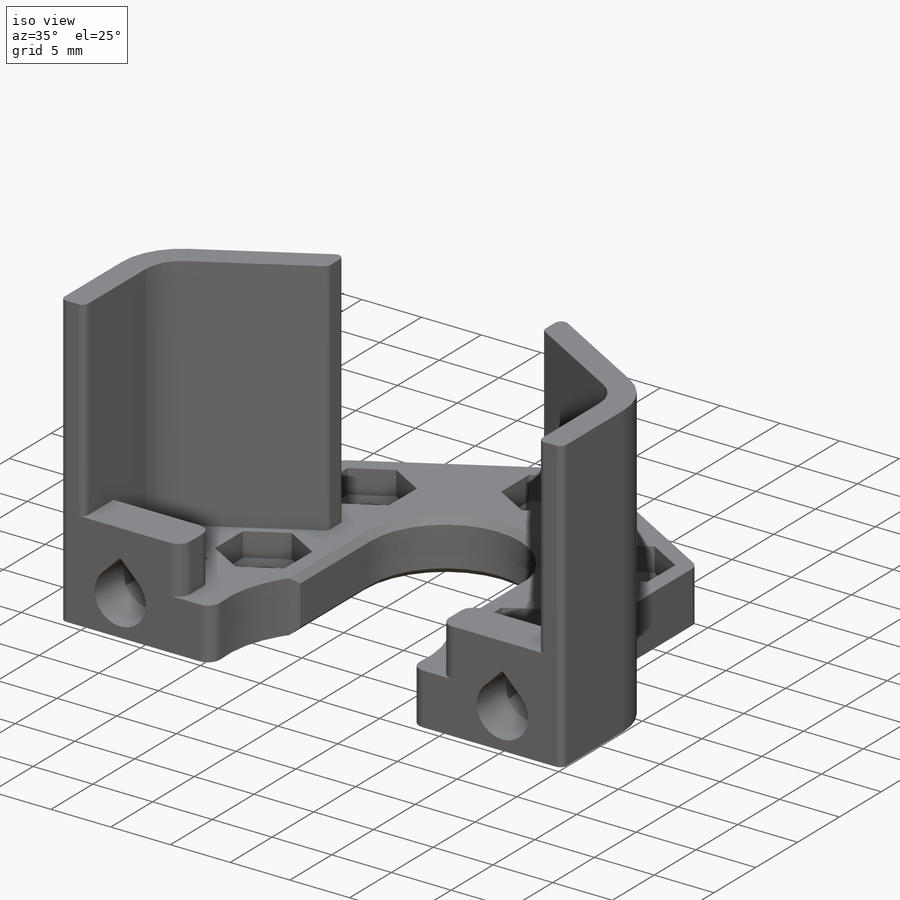
[diagram: iso view]
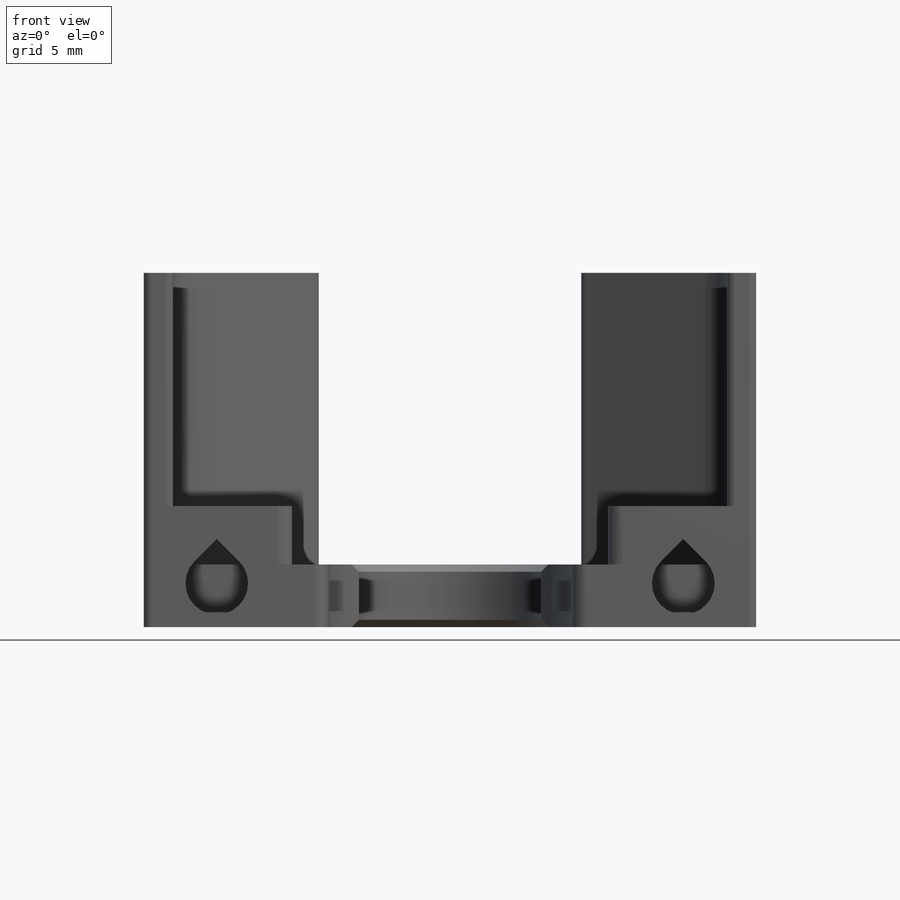
[diagram: front view]
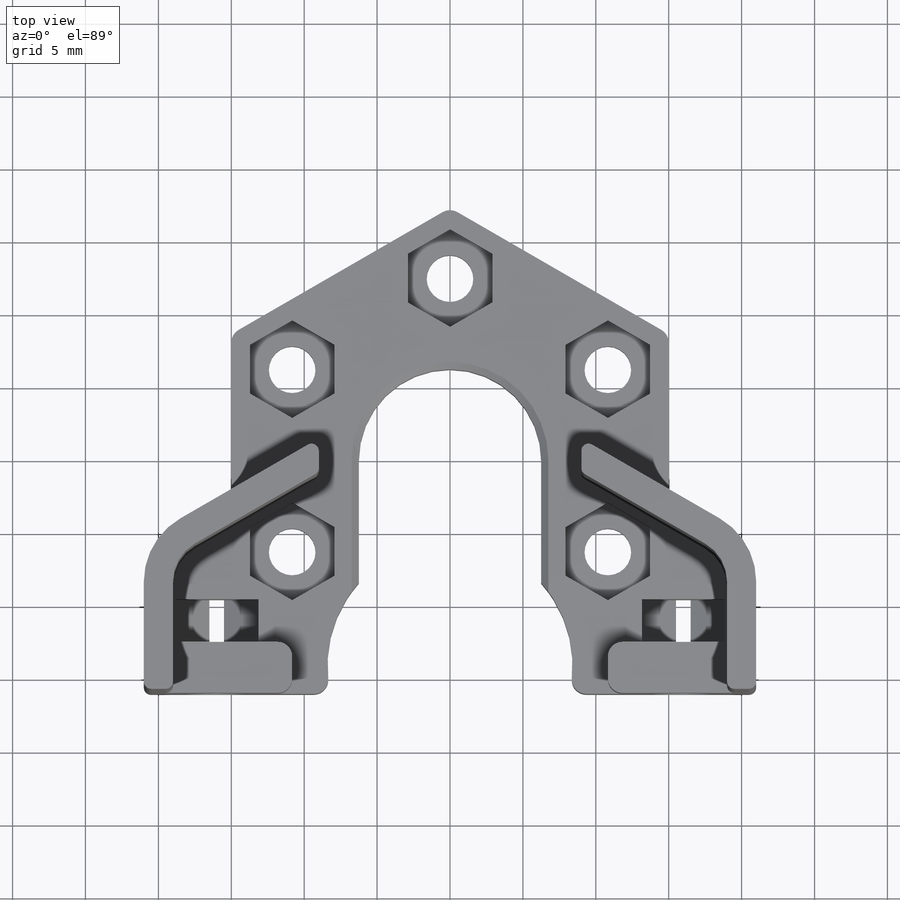
[diagram: top view]
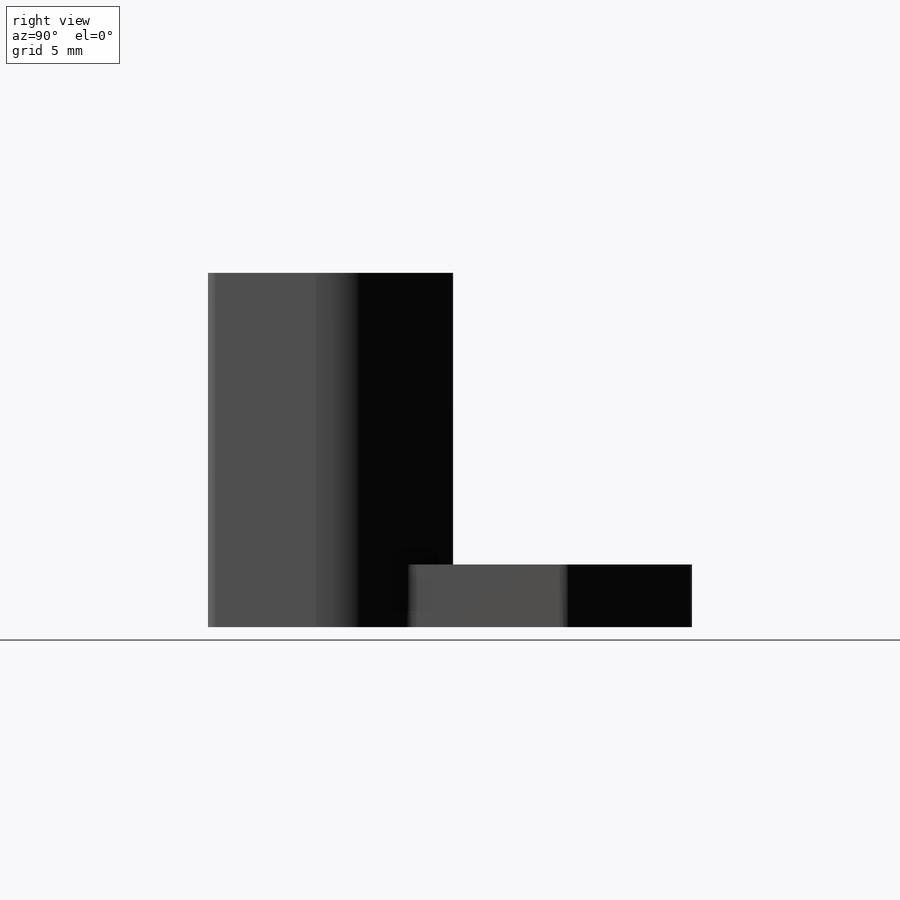
[diagram: right view]
SOLIDWORKS PART (.sldprt)
format: sldprt  version: not decoded by parser v0  size: 593,920 bytes
history: native  units: mm
features: sketch x11, cut_extrude x7, fillet x5, extrude x4, material x1, chamfer x1 (+12 scaffold rows collapsed)
feature tree (41):
  scaffold x12  (default folders/planes/origin — collapsed)
  material  "Material <not specified>"
  sketch  "Sketch1"  dims[c1.D4=3.2mm c1.D1=12.5mm c1.D2=32.0mm c1.D3=~27.712813mm c2.D2=30.0mm c2.D3=25.0mm]
  extrude  "Boss-Extrude1"  Depth=4.3mm
  fillet  "Fillet1"  Radius=1mm
  sketch  "Sketch2"  dims[D1=5.8mm]
  cut_extrude  "Cut-Extrude1"  Depth=2mm
  sketch  "Sketch3"  dims[D1=20.0mm D3=1.0mm D2=40.0mm]
  extrude  "Boss-Extrude2"  [1 undecoded]
  sketch  "Sketch4"  dims[D1=20.0mm D2=16.8mm]
  cut_extrude  "Cut-Extrude2"  [1 undecoded]
  sketch  "Sketch5"  dims[D1=8.0mm]
  cut_extrude  "Cut-Extrude3"  Depth=5mm
  sketch  "Sketch6"  dims[D2=3.5mm D1=0.0mm]
  extrude  "Boss-Extrude3"  Depth=4mm
  sketch  "Sketch7"  dims[D1=32.0mm]
  cut_extrude  "Cut-Extrude4"  [1 undecoded]
  sketch  "Sketch8"  dims[D1=5.7mm]
  cut_extrude  "Cut-Extrude5"  Depth=3mm
  sketch  "Sketch9"
  cut_extrude  "Cut-Extrude6"  [1 undecoded]
  fillet  "Fillet2"  Radius=1mm
  chamfer  "Chamfer1"  Distance=0.5mm Angle=45deg
  sketch  "Sketch10"
  cut_extrude  "Cut-Extrude7"  [1 undecoded]
  sketch  "Sketch11"  dims[D1=2.0mm D2=6.0mm D3=2.0mm]
  extrude  "Boss-Extrude4"  Depth=20mm
  fillet  "Fillet3"  Radius=3mm
  fillet  "Fillet4"  Radius=5mm
  fillet  "Fillet5"  Radius=0.5mm
decode coverage: 21 of 28 modeling features carry decoded parameters
note: ~ marks probable driven/reference dimensions
note: 5 parameter values undecoded
summary: no parameter record found for 5 features
note: suppression state not decoded; provenance and decode notes live in map.json
